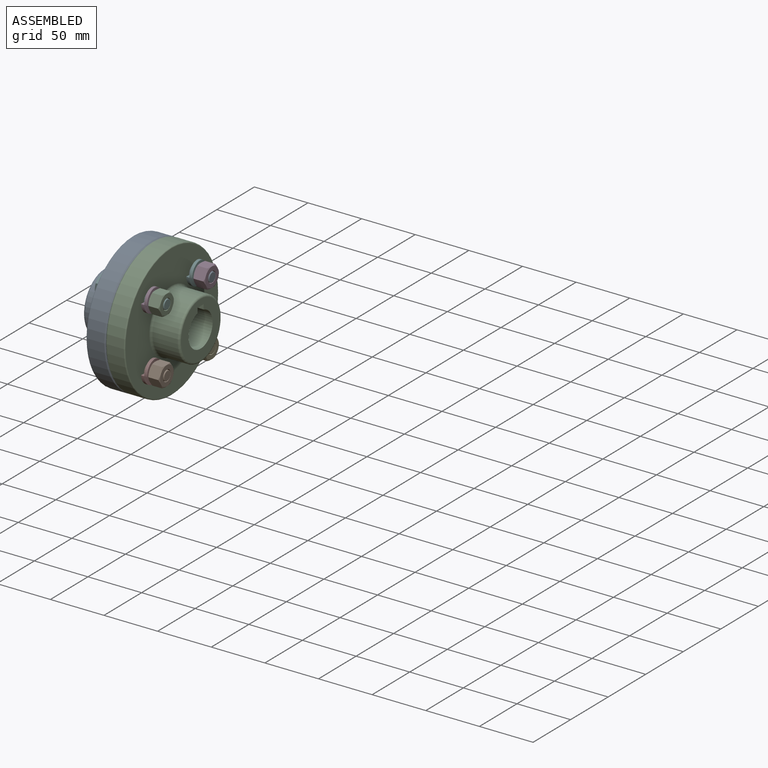
[diagram: assembled view]
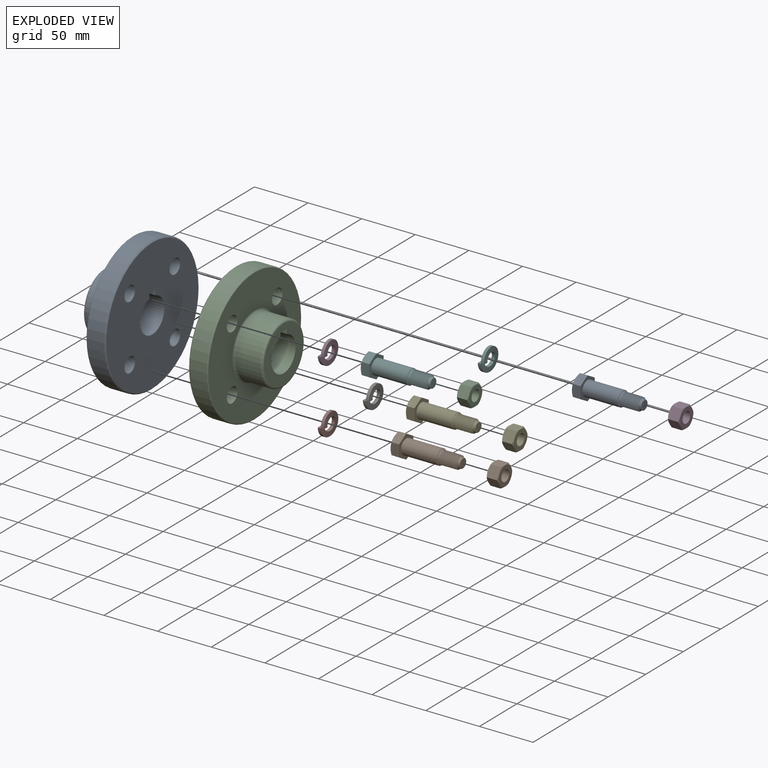
[diagram: exploded view]
GUIDED TOUR — MATED ASSEMBLY (Onshape document cb337943b501ef2673ab2de8, AutoMate assembly cb337943b501ef2673ab2de8_8743c53026f113860fbafb0b_4ac1e7995c9031f9525d6a02_default)

This assembly has 14 components, labeled P0..P13 below (a component is one placed occurrence of a part; the same part can appear more than once), held together by 13 mates. A mate is a constraint between two components; its type names the relative motion it leaves free:
  CYLINDRICAL — leaves both rotation about and translation along the listed axis free,
  FASTENED — locks the two components together rigidly (no relative motion).
Axis/direction vectors are unit vectors and 'through' points are millimeter coordinates, both in the assembly's world frame.

MATES
  1. FASTENED "Fastened 4": P9 <-> P8, direction (1.000, 0.000, 0.000) through (-18.00, -30.05, -30.05) mm
  2. FASTENED "Fastened 3": P13 <-> P8, direction (1.000, 0.000, 0.000) through (-18.00, -30.05, 30.05) mm
  3. FASTENED "Fastened 9": P6 <-> P10, direction (-1.000, 0.000, 0.000) through (18.00, 30.05, -29.99) mm
  4. FASTENED "Fastened 7": P5 <-> P10, direction (-1.000, 0.000, 0.000) through (18.00, 30.05, 30.11) mm
  5. CYLINDRICAL "Cylindrical 2": P2 <-> P3, axis (-1.000, 0.000, 0.000) through (23.76, -30.05, 30.11) mm
  6. FASTENED "Fastened 5": P12 <-> P8, direction (1.000, 0.000, 0.000) through (-18.00, 30.05, -30.05) mm
  7. CYLINDRICAL "Cylindrical 1": P11 <-> P5, axis (-1.000, 0.000, 0.000) through (23.76, 30.05, 30.11) mm
  8. CYLINDRICAL "Cylindrical 3": P1 <-> P7, axis (-1.000, 0.000, 0.000) through (23.76, -30.05, -29.99) mm
  9. CYLINDRICAL "Cylindrical 4": P4 <-> P6, axis (-1.000, 0.000, 0.000) through (23.76, 30.05, -29.99) mm
  10. FASTENED "Fastened 6": P3 <-> P10, direction (-1.000, 0.000, 0.000) through (18.00, -30.05, 30.11) mm
  11. FASTENED "Fastened 8": P7 <-> P10, direction (-1.000, 0.000, 0.000) through (18.00, -30.05, -29.99) mm
  12. FASTENED "Fastened 1": P10 <-> P8, direction (-1.000, 0.000, 0.000) through (0.00, 0.00, 0.00) mm
  13. FASTENED "Fastened 2": P0 <-> P8, direction (1.000, 0.000, 0.000) through (-18.00, 30.05, 30.05) mm

ASSEMBLY ORDER
  1. P8 — the base component [order heuristic]
  2. P0 [order heuristic]
  3. P9 [order heuristic]
  4. P10 [order heuristic]
  5. P12 [order heuristic]
  6. P13 [order heuristic]
  7. P3 [order heuristic]
  8. P5 [order heuristic]
  9. P6 [order heuristic]
  10. P7 [order heuristic]
  11. P1 [order heuristic]
  12. P2 [order heuristic]
  13. P4 [order heuristic]
  14. P11 [order heuristic]
Order-tag legend:
  [order heuristic] — this assembly is geometrically interlocked (no collision-free removal order exists), so components are listed in mate-graph order; insertion feasibility is not verified.

Of the 14 components, 2 carry the full construction recipe — the FeatureScript program that regenerates the part's solid from scratch; the rest are supplied as boundary geometry only.
Because this assembly has more than 12 components, the tour below covers the 12 most significant ones individually (every recipe-attached component first, then the largest by part volume), in assembly order; the remaining 2 are summarized together in a grouped section at the end.
Each toured component is shown spotlighted twice — in the assembled view, then in the exploded view, where a leader line traces a displaced component back to its assembled socket (saturated green if recipe-attached, orange if geometry-only; every other component desaturated gray) — followed by its recipe or geometry summary and the mates that hold it.
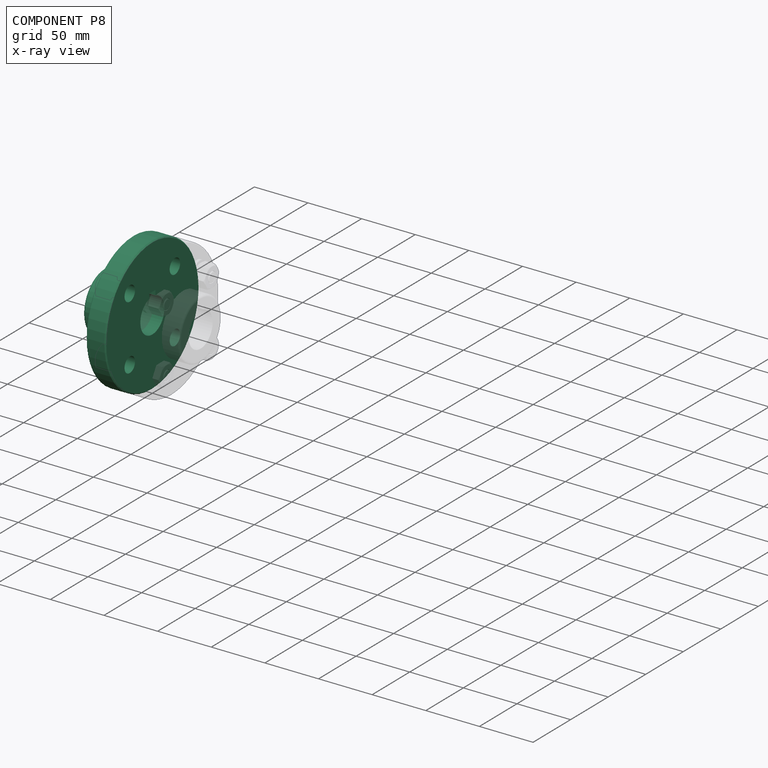
[diagram: component P8 — x-ray view]
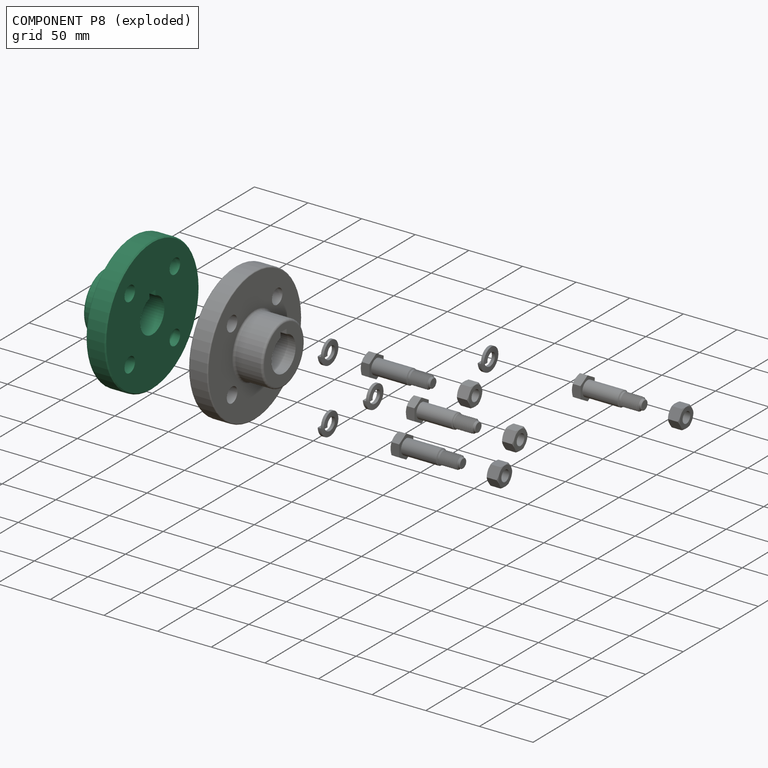
[diagram: component P8 — exploded]
COMPONENT P8 — recipe-attached (CADFS 00271778, mesh-verified: the recipe's output STEP matches this component's geometry to below the mesh-comparison resolution (tessellation chordal tolerance ~0.274 mm)).
Held by: FASTENED mate "Fastened 4" to P9; FASTENED mate "Fastened 3" to P13; FASTENED mate "Fastened 5" to P12; FASTENED mate "Fastened 1" to P10; FASTENED mate "Fastened 2" to P0.
Construction recipe (FeatureScript — the CAD program that rebuilds this solid; sketch coordinates are in the units given by the * unit suffixes, e.g. mm):

FeatureScript 1511;
import(path : "onshape/std/geometry.fs", version : "1511.0");
import(path : "onshape/std/common.fs", version : "1511.0");
const mm = millimeter;
const VERTEX = EntityType.VERTEX;
const EDGE = EntityType.EDGE;
const FACE = EntityType.FACE;
const BODY = EntityType.BODY;
function v(x, y){return vector(x, y);}
function OD(order){return orderDisambiguation(order);}
function OSD(set){return originalSetDisambiguation(set);}
function TD(topology){return topologyDisambiguation(topology);}
function TDD(query){return trueDependencyDisambiguation(query);}
function sQuery(a, b, c) {return sketchEntityQuery(a, b, c);}

annotation { "Feature Type Name" : "Feature", "Feature Type Description" : "" }
export const myFeature = defineFeature(function(context is Context, id is Id, definition is map)
    precondition{}
    {
        {
            var Q0;
            Q0=qCreatedBy(makeId("Front.planeOp"),FACE);
            var sketch = newSketch(context, id + "F0", { "sketchPlane" : qUnion([Q0])});
            skLineSegment(sketch, "E0", {"start": v(0, 16) * mm, "end": v(0, 62.5) * mm});
            skLineSegment(sketch, "E1", {"start": v(0, 62.5) * mm, "end": v(-18, 62.5) * mm});
            skLineSegment(sketch, "E2", {"start": v(-18, 62.5) * mm, "end": v(-18, 28) * mm});
            skLineSegment(sketch, "E3", {"start": v(-18, 28) * mm, "end": v(-45, 28) * mm});
            skLineSegment(sketch, "E4", {"start": v(-45, 28) * mm, "end": v(-45, 16) * mm});
            skLineSegment(sketch, "E5", {"start": v(-61.5, 0) * mm, "end": v(24.65, 0) * mm, "construction": true});
            skLineSegment(sketch, "E6", {"start": v(-45, 16) * mm, "end": v(0, 16) * mm});
            skSolve(sketch);
        }
        {
            var Q0;
            Q0=makeQuery(id+"F0.imprint","IMPRINT",FACE,{"disambiguationData":[TD([[makeQuery(id+"F0.imprint","IMPRINT",EDGE,{"derivedFrom":sQuery(id+"F0.wireOp",EDGE,"E0")}),1.0]])]});
            var Q1;
            Q1=sQuery(id+"F0.wireOp",EDGE,"E5");
            revolve(context, id + "F1", {"entities" : qUnion([Q0]), "axis" : qUnion([Q1]), "revolveType" : RevolveType.FULL});
        }
        {
            var Q0;
            Q0=makeQuery(id+"F1.opRevolve","SWEPT_FACE",FACE,{"disambiguationData":[OSD([sQuery(id+"F0.wireOp",EDGE,"E4")])]});
            var sketch = newSketch(context, id + "F2", { "sketchPlane" : qUnion([Q0])});
            skLineSegment(sketch, "E7.bottom", {"start": v(-4, 20) * mm, "end": v(4, 20) * mm});
            skLineSegment(sketch, "E7.top", {"start": v(-4, 12) * mm, "end": v(4, 12) * mm});
            skLineSegment(sketch, "E7.left", {"start": v(-4, 20) * mm, "end": v(-4, 12) * mm});
            skLineSegment(sketch, "E7.right", {"start": v(4, 20) * mm, "end": v(4, 12) * mm});
            skSolve(sketch);
        }
        {
            var Q0;
            Q0 = qSketchRegion(id + "F2", true);
            extrude(context, id + "F3", {"entities" : qUnion([Q0]), "operationType" : NewBodyOperationType.REMOVE, "endBound" : BoundingType.THROUGH_ALL, "oppositeDirection" : true, "depth" : 25 * mm});
        }
        {
            var Q0;
            Q0=makeQuery(id+"F1.opRevolve","SWEPT_FACE",FACE,{"disambiguationData":[OSD([sQuery(id+"F0.wireOp",EDGE,"E2")])]});
            var sketch = newSketch(context, id + "F4", { "sketchPlane" : qUnion([Q0])});
            skLineSegment(sketch, "E8", {"start": v(0, 0) * mm, "end": v(-30.05, 30.05) * mm, "construction": true});
            skLineSegment(sketch, "E9.MirrorCS", {"start": v(0, 0) * mm, "end": v(30.05, 30.05) * mm, "construction": true});
            skLineSegment(sketch, "E10.MirrorCS", {"start": v(0, 0) * mm, "end": v(30.05, -30.05) * mm, "construction": true});
            skLineSegment(sketch, "E11.MirrorCS", {"start": v(0, 0) * mm, "end": v(-30.05, -30.05) * mm, "construction": true});
            skSolve(sketch);
        }
        {
            var Q0;
            Q0=sQuery(id+"F4.wireOp",VERTEX,"E8.end");
            var Q1;
            Q1=sQuery(id+"F4.wireOp",VERTEX,"E11.MirrorCS.end");
            var Q2;
            Q2=sQuery(id+"F4.wireOp",VERTEX,"E10.MirrorCS.end");
            var Q3;
            Q3=sQuery(id+"F4.wireOp",VERTEX,"E9.MirrorCS.end");
            var Q4;
            Q4=makeQuery(id+"F1.opRevolve","SWEPT_BODY",BODY,{"disambiguationData":[OSD([sQuery(id+"F0.wireOp",EDGE,"E0"),sQuery(id+"F0.wireOp",EDGE,"E1"),sQuery(id+"F0.wireOp",EDGE,"E2"),sQuery(id+"F0.wireOp",EDGE,"E3"),sQuery(id+"F0.wireOp",EDGE,"E4"),sQuery(id+"F0.wireOp",EDGE,"E6")])]});
            hole(context, id + "F5", {"style" : HoleStyle.SIMPLE, "endStyle" : HoleEndStyle.THROUGH, "holeDiameter" : 14 * mm, "tappedDepth" : 12 * mm, "tapClearance" : 3, "locations" : qUnion([Q0, Q1, Q2, Q3]), "scope" : qUnion([Q4])});
        }
        {
            var Q0;
            Q0=makeQuery(id+"F1.opRevolve","SWEPT_EDGE",EDGE,{"disambiguationData":[OSD([sQuery(id+"F0.wireOp",EDGE,"E3"),sQuery(id+"F0.wireOp",EDGE,"E4")])]});
            var Q1;
            Q1=makeQuery(id+"F1.opRevolve","SWEPT_EDGE",EDGE,{"disambiguationData":[OSD([sQuery(id+"F0.wireOp",EDGE,"E2"),sQuery(id+"F0.wireOp",EDGE,"E3")])]});
            fillet(context, id + "F6", {"entities" : qUnion([Q0, Q1]), "radius" : 2 * mm, "tangentPropagation" : true, "allowEdgeOverflow" : false});
        }
        {
            var Q0;
            Q0=makeQuery(id+"F1.opRevolve","SWEPT_EDGE",EDGE,{"disambiguationData":[OSD([sQuery(id+"F0.wireOp",EDGE,"E1"),sQuery(id+"F0.wireOp",EDGE,"E2")])]});
            fillet(context, id + "F7", {"entities" : qUnion([Q0]), "radius" : 1 * mm, "tangentPropagation" : true, "allowEdgeOverflow" : false});
        }
        {
            var Q0;
            Q0=makeQuery(id+"F1.opRevolve","SWEPT_EDGE",EDGE,{"disambiguationData":[OSD([sQuery(id+"F0.wireOp",EDGE,"E0"),sQuery(id+"F0.wireOp",EDGE,"E1")])]});
            chamfer(context, id + "F8", {"entities" : qUnion([Q0]), "width" : 1 * mm, "tangentPropagation" : true});
        }
    });
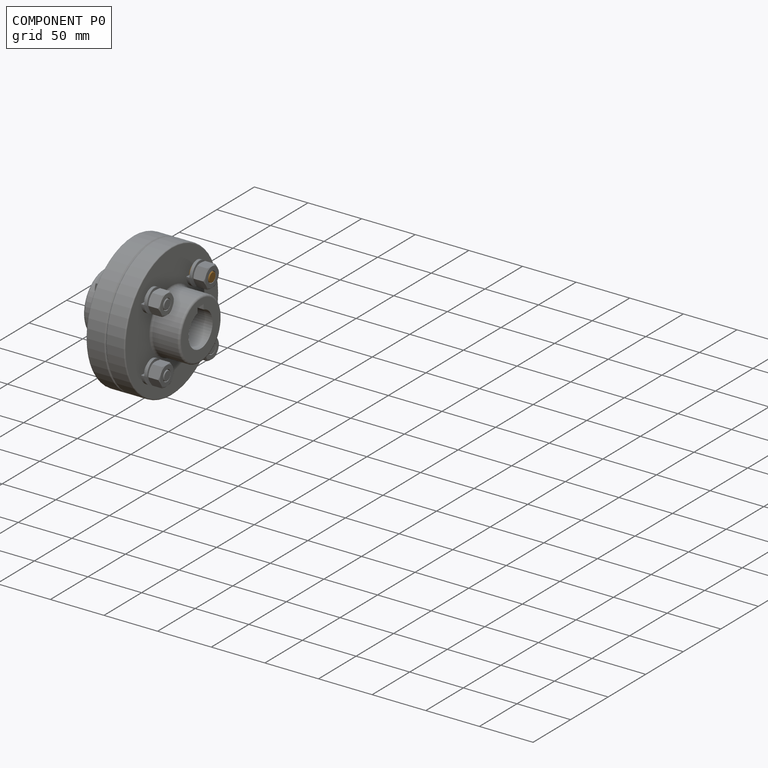
[diagram: component P0 — assembled]
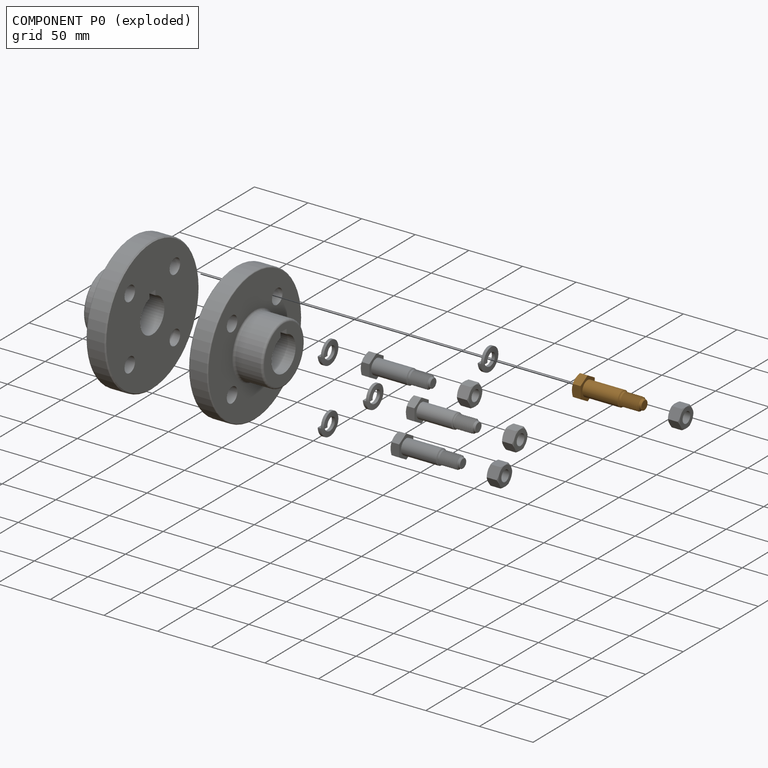
[diagram: component P0 — exploded]
COMPONENT P0 — geometry summary (no construction recipe available for this part):
  bounding box: 61.5 x 21.9 x 21.9 mm
  B-rep topology: 1 solid, 25 faces, 114 edges
  volume: 9304 mm^3 (31% of its bounding box)
Held by: FASTENED mate "Fastened 2" to P8.
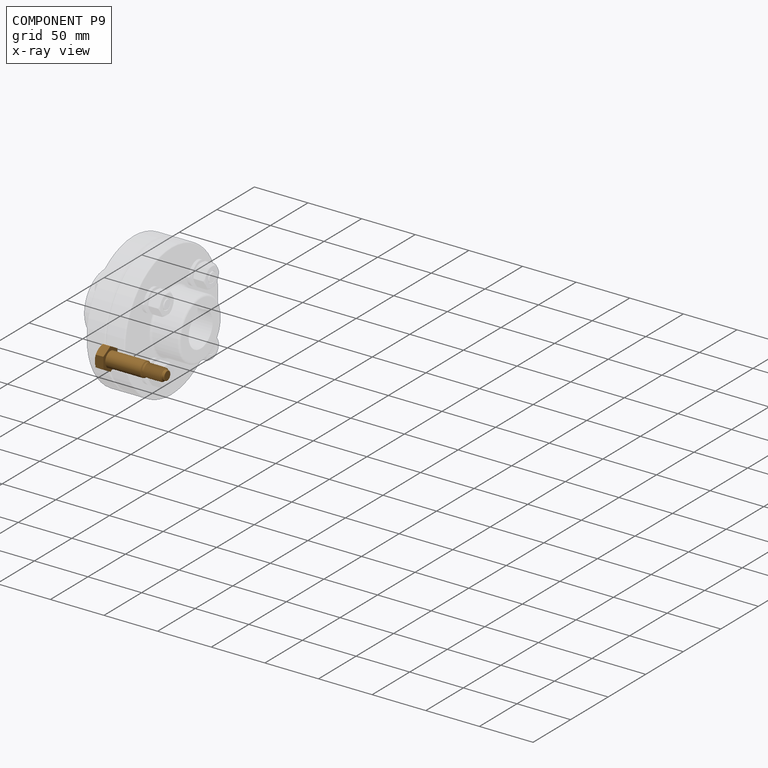
[diagram: component P9 — x-ray view]
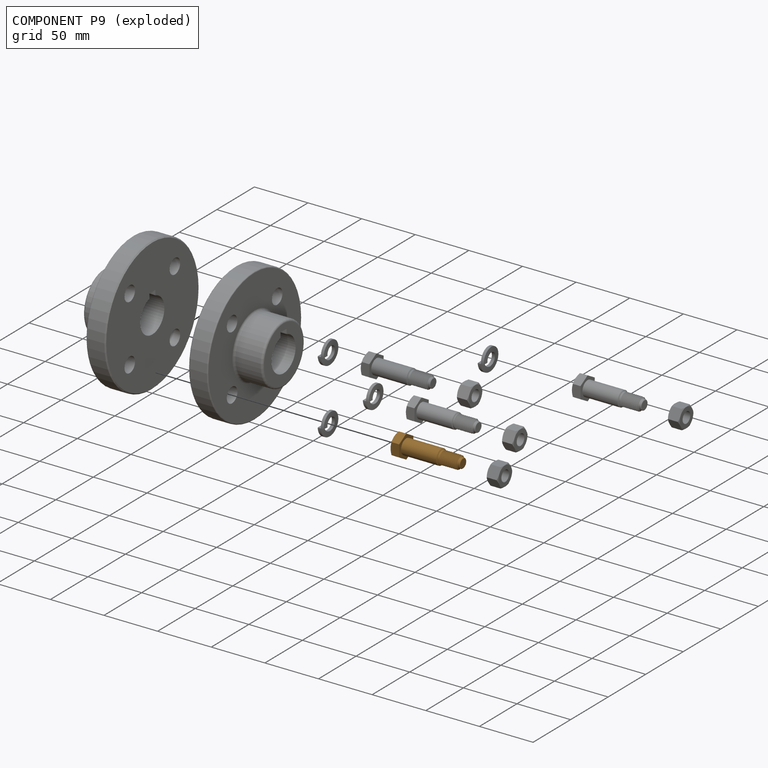
[diagram: component P9 — exploded]
COMPONENT P9 — geometry summary (no construction recipe available for this part):
  bounding box: 61.5 x 21.9 x 21.9 mm
  B-rep topology: 1 solid, 25 faces, 114 edges
  volume: 9304 mm^3 (31% of its bounding box)
Held by: FASTENED mate "Fastened 4" to P8.
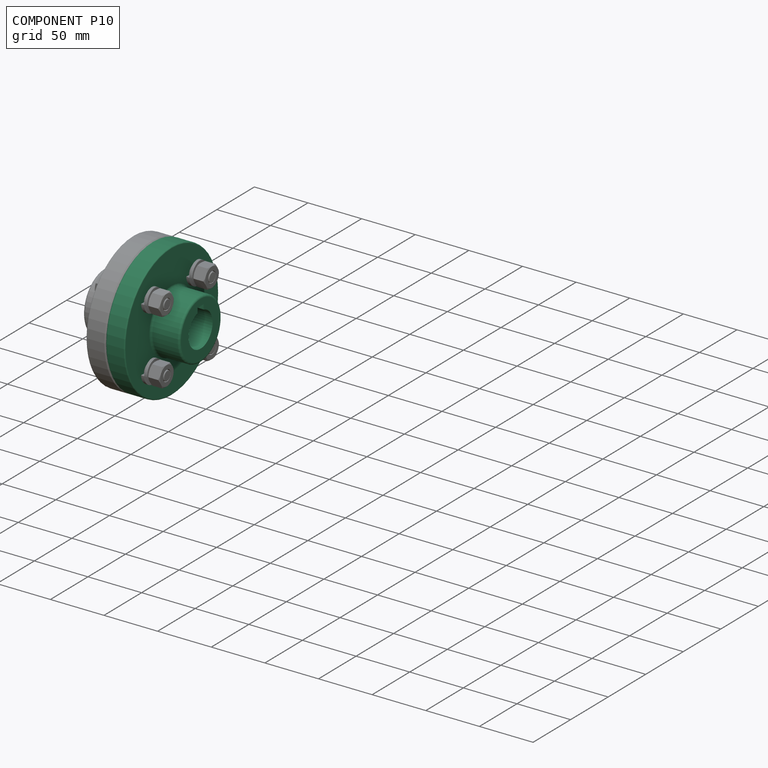
[diagram: component P10 — assembled]
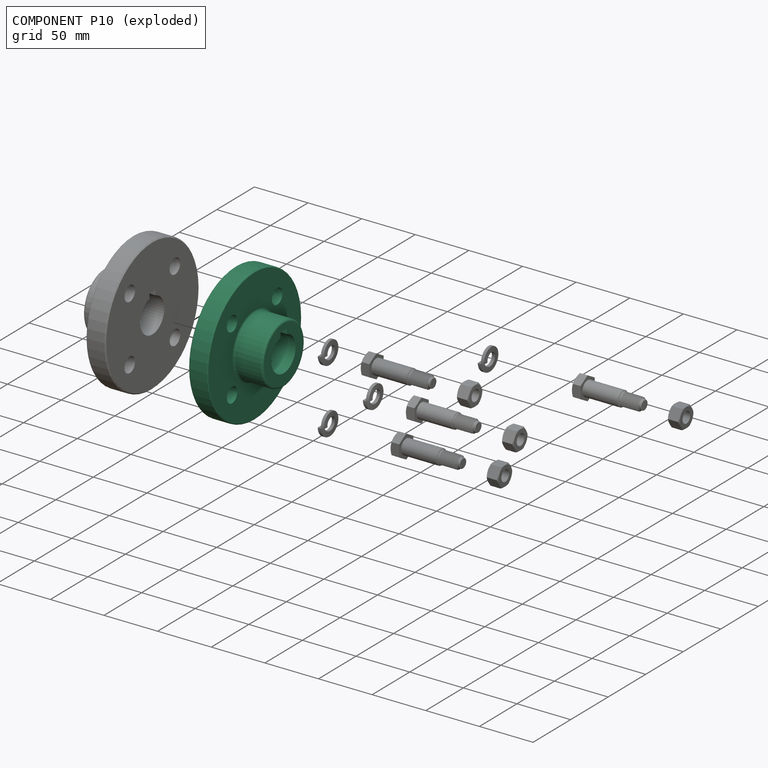
[diagram: component P10 — exploded]
COMPONENT P10 — same part as P8 (CADFS 00271778); its construction recipe is shown at P8.
Held by: FASTENED mate "Fastened 9" to P6; FASTENED mate "Fastened 7" to P5; FASTENED mate "Fastened 6" to P3; FASTENED mate "Fastened 8" to P7; FASTENED mate "Fastened 1" to P8.
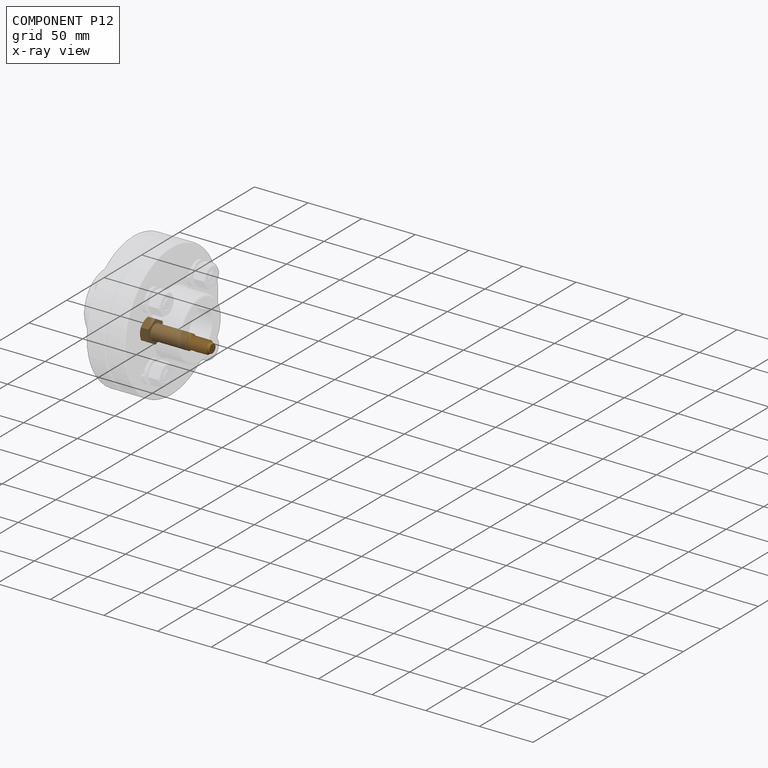
[diagram: component P12 — x-ray view]
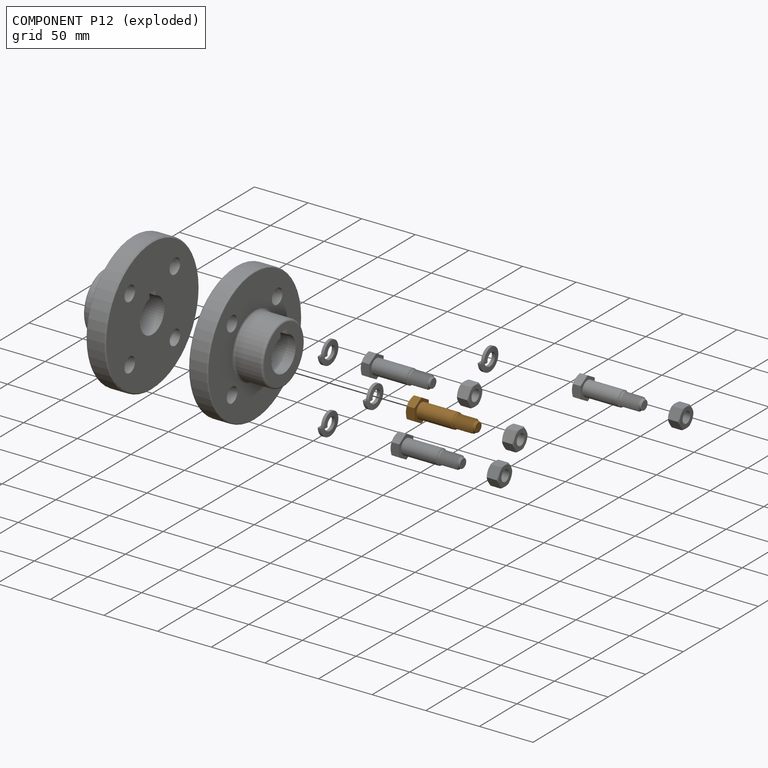
[diagram: component P12 — exploded]
COMPONENT P12 — geometry summary (no construction recipe available for this part):
  bounding box: 61.5 x 21.9 x 21.9 mm
  B-rep topology: 1 solid, 25 faces, 114 edges
  volume: 9304 mm^3 (31% of its bounding box)
Held by: FASTENED mate "Fastened 5" to P8.
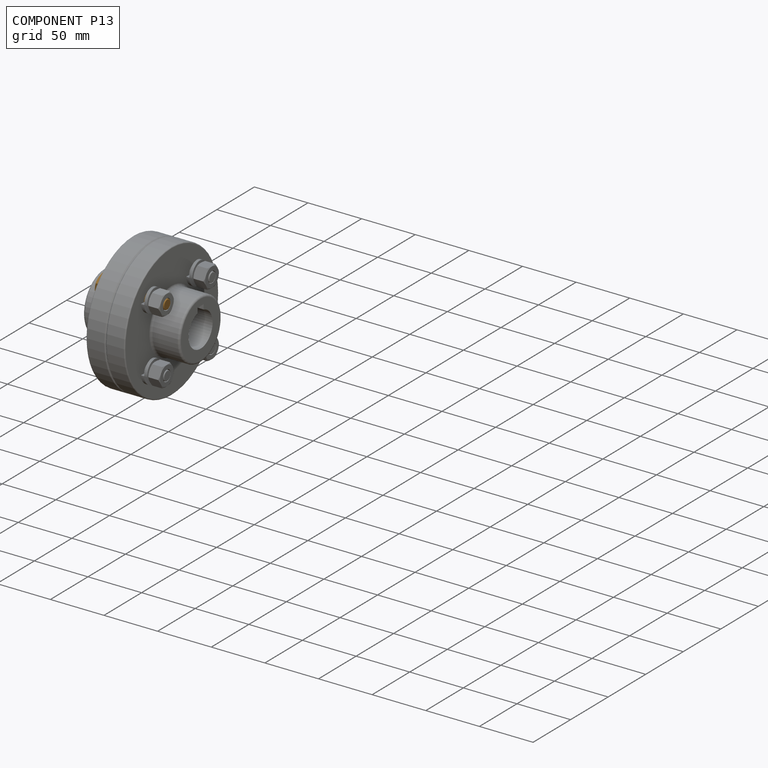
[diagram: component P13 — assembled]
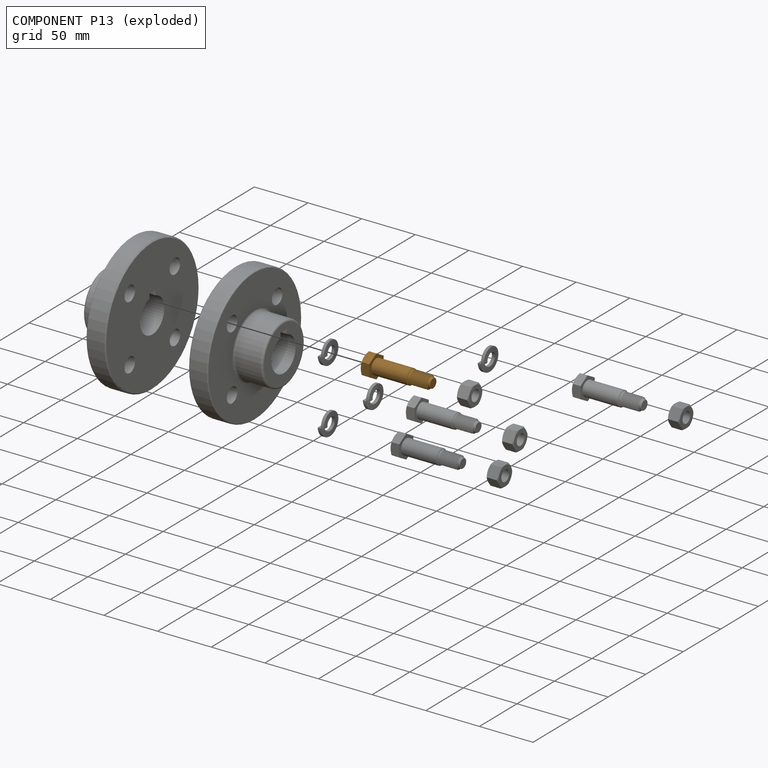
[diagram: component P13 — exploded]
COMPONENT P13 — geometry summary (no construction recipe available for this part):
  bounding box: 61.5 x 21.9 x 21.9 mm
  B-rep topology: 1 solid, 25 faces, 114 edges
  volume: 9304 mm^3 (31% of its bounding box)
Held by: FASTENED mate "Fastened 3" to P8.
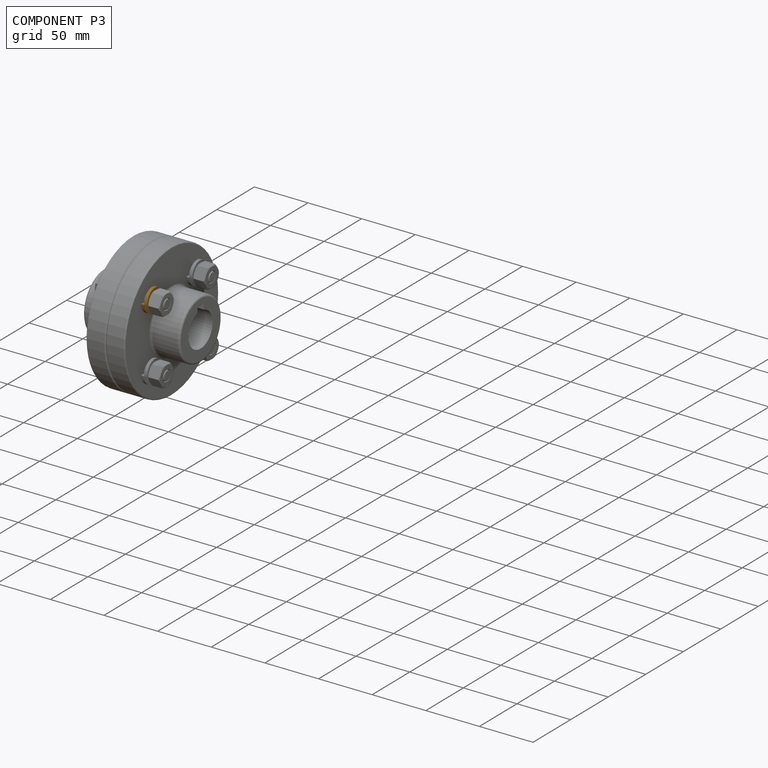
[diagram: component P3 — assembled]
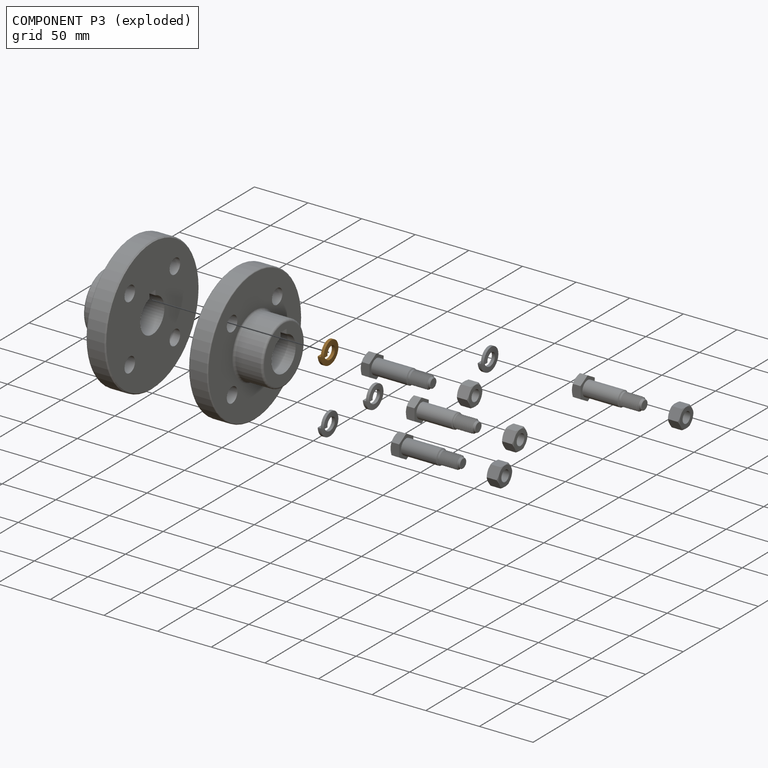
[diagram: component P3 — exploded]
COMPONENT P3 — geometry summary (no construction recipe available for this part):
  bounding box: 24.8 x 21.5 x 6.0 mm
  B-rep topology: 1 solid, 6 faces, 24 edges
  volume: 696 mm^3 (22% of its bounding box)
  symmetry: 2-fold rotationally symmetric about the x axis
Held by: CYLINDRICAL mate "Cylindrical 2" to P2; FASTENED mate "Fastened 6" to P10.
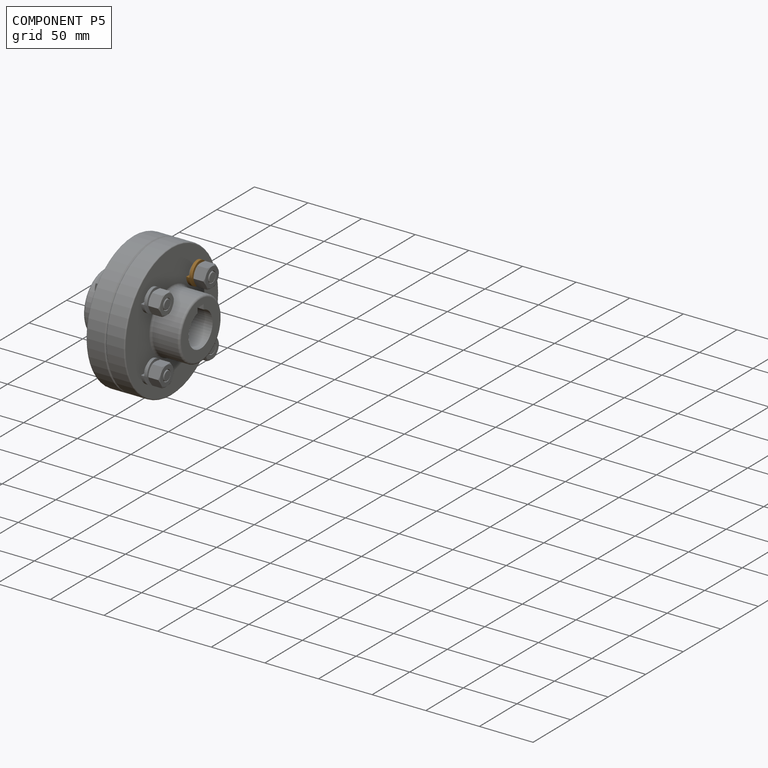
[diagram: component P5 — assembled]
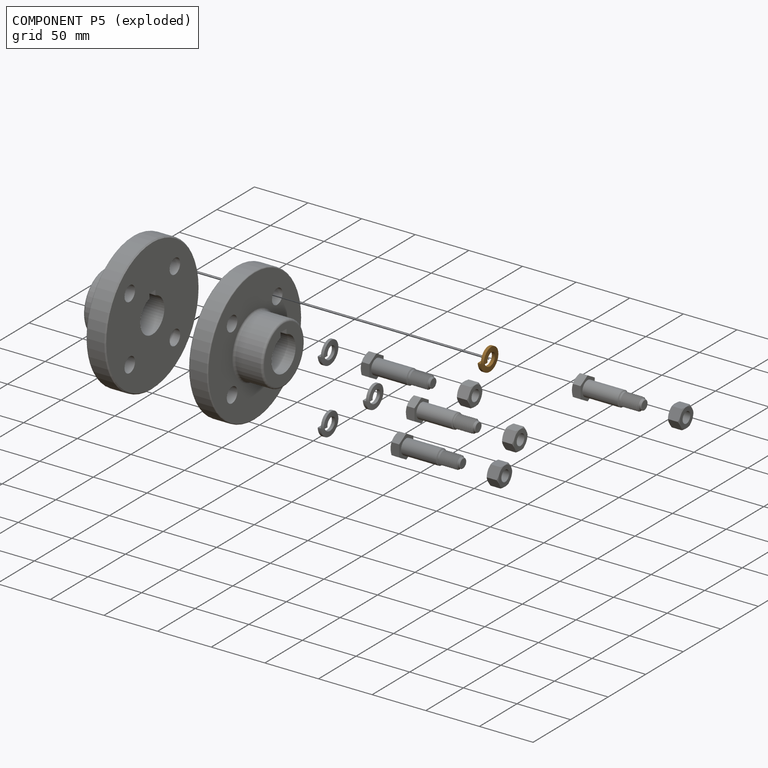
[diagram: component P5 — exploded]
COMPONENT P5 — geometry summary (no construction recipe available for this part):
  bounding box: 24.8 x 21.5 x 6.0 mm
  B-rep topology: 1 solid, 6 faces, 24 edges
  volume: 696 mm^3 (22% of its bounding box)
  symmetry: 2-fold rotationally symmetric about the x axis
Held by: FASTENED mate "Fastened 7" to P10; CYLINDRICAL mate "Cylindrical 1" to P11.
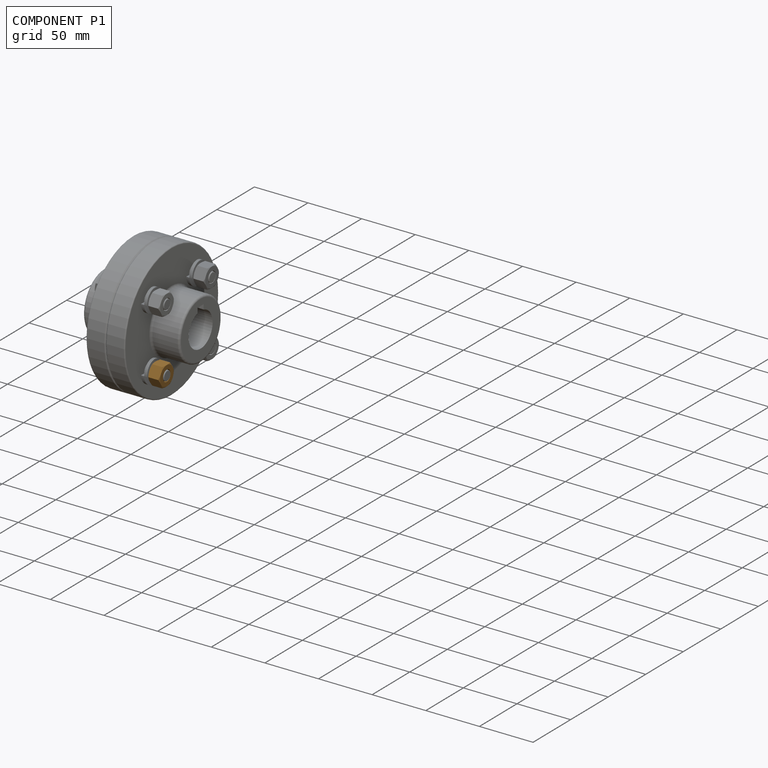
[diagram: component P1 — assembled]
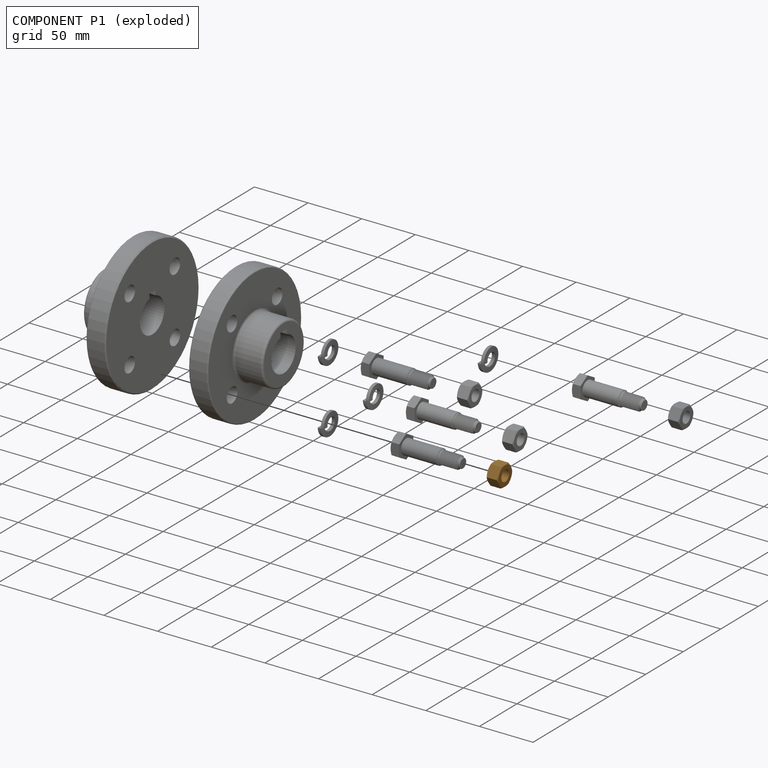
[diagram: component P1 — exploded]
COMPONENT P1 — geometry summary (no construction recipe available for this part):
  bounding box: 21.6 x 21.6 x 11.7 mm
  B-rep topology: 1 solid, 21 faces, 90 edges
  volume: 2226 mm^3 (41% of its bounding box)
  symmetry: 2-fold rotationally symmetric about the x axis; 6-fold rotationally symmetric about the y axis; 2-fold rotationally symmetric about the z axis; mirror-symmetric across its x mid-plane, y mid-plane, z mid-plane
Held by: CYLINDRICAL mate "Cylindrical 3" to P7.
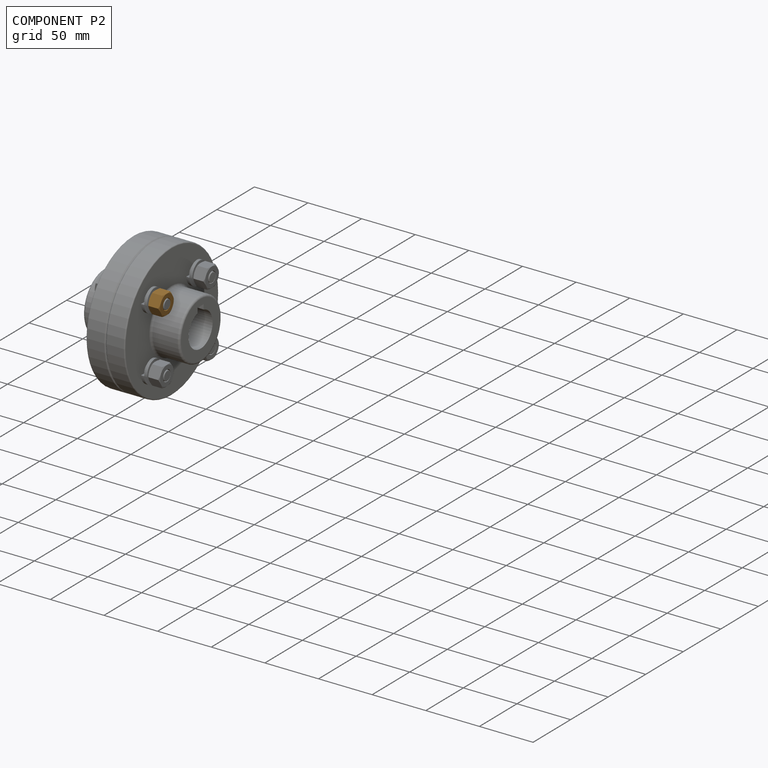
[diagram: component P2 — assembled]
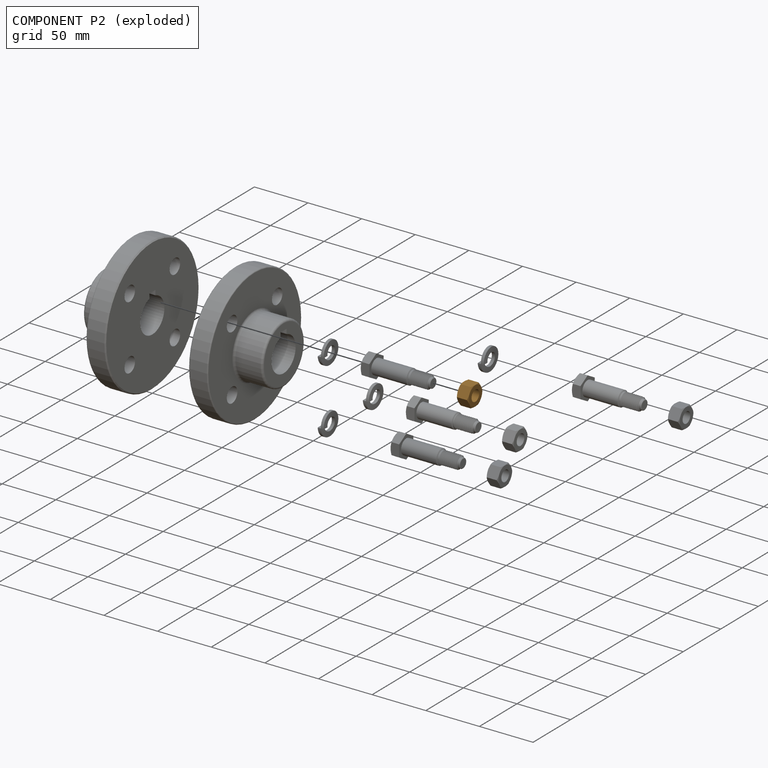
[diagram: component P2 — exploded]
COMPONENT P2 — geometry summary (no construction recipe available for this part):
  bounding box: 21.6 x 21.6 x 11.7 mm
  B-rep topology: 1 solid, 21 faces, 90 edges
  volume: 2226 mm^3 (41% of its bounding box)
  symmetry: 2-fold rotationally symmetric about the x axis; 6-fold rotationally symmetric about the y axis; 2-fold rotationally symmetric about the z axis; mirror-symmetric across its x mid-plane, y mid-plane, z mid-plane
Held by: CYLINDRICAL mate "Cylindrical 2" to P3.
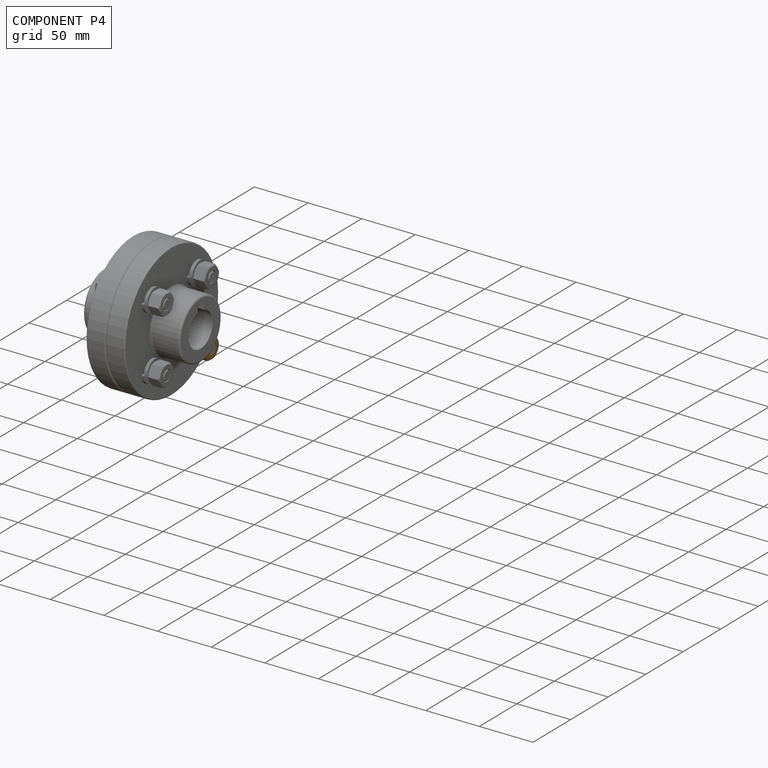
[diagram: component P4 — assembled]
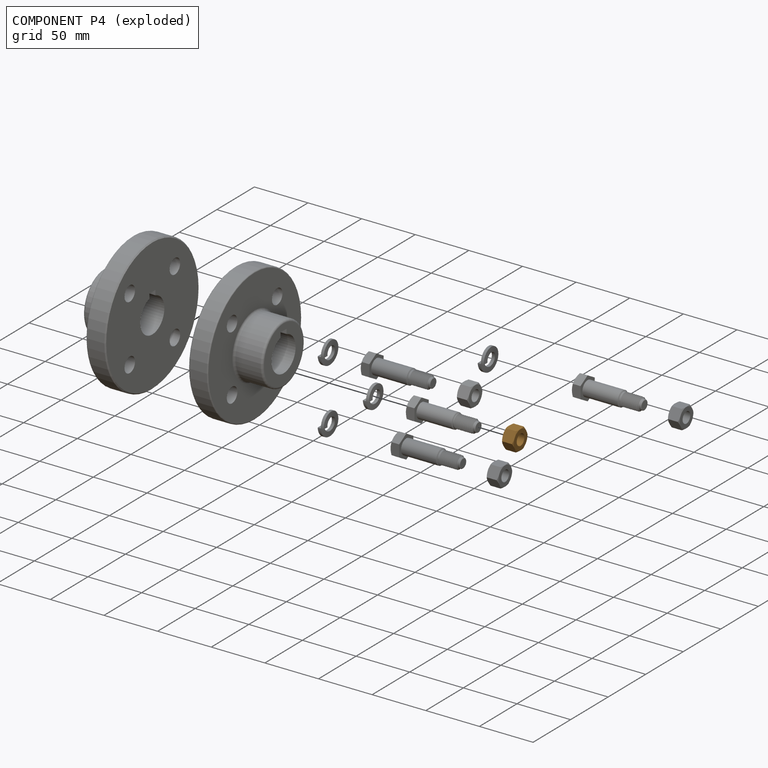
[diagram: component P4 — exploded]
COMPONENT P4 — geometry summary (no construction recipe available for this part):
  bounding box: 21.6 x 21.6 x 11.7 mm
  B-rep topology: 1 solid, 21 faces, 90 edges
  volume: 2226 mm^3 (41% of its bounding box)
  symmetry: 2-fold rotationally symmetric about the x axis; 6-fold rotationally symmetric about the y axis; 2-fold rotationally symmetric about the z axis; mirror-symmetric across its x mid-plane, y mid-plane, z mid-plane
Held by: CYLINDRICAL mate "Cylindrical 4" to P6.
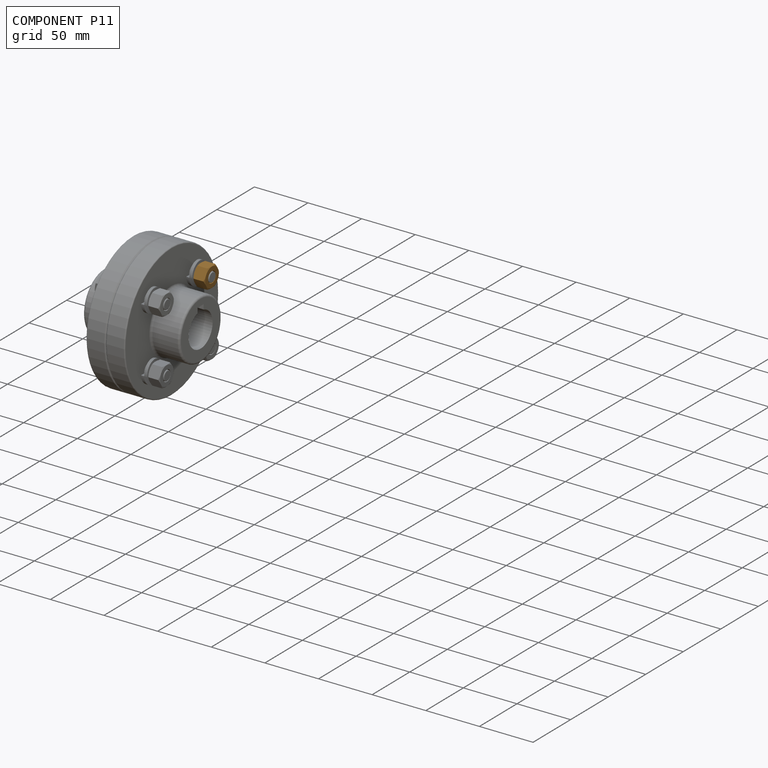
[diagram: component P11 — assembled]
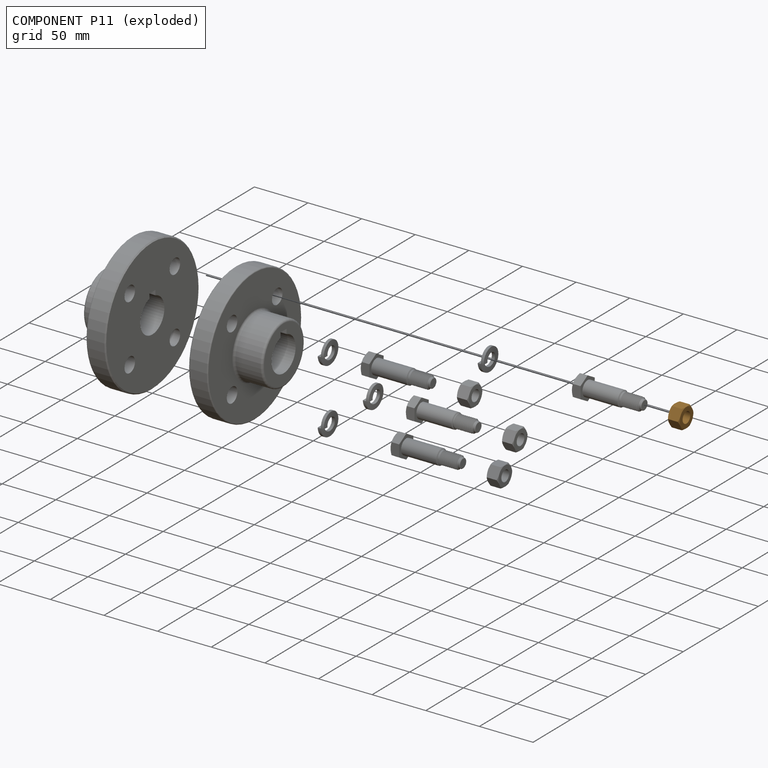
[diagram: component P11 — exploded]
COMPONENT P11 — geometry summary (no construction recipe available for this part):
  bounding box: 21.6 x 21.6 x 11.7 mm
  B-rep topology: 1 solid, 21 faces, 90 edges
  volume: 2226 mm^3 (41% of its bounding box)
  symmetry: 2-fold rotationally symmetric about the x axis; 6-fold rotationally symmetric about the y axis; 2-fold rotationally symmetric about the z axis; mirror-symmetric across its x mid-plane, y mid-plane, z mid-plane
Held by: CYLINDRICAL mate "Cylindrical 1" to P5.
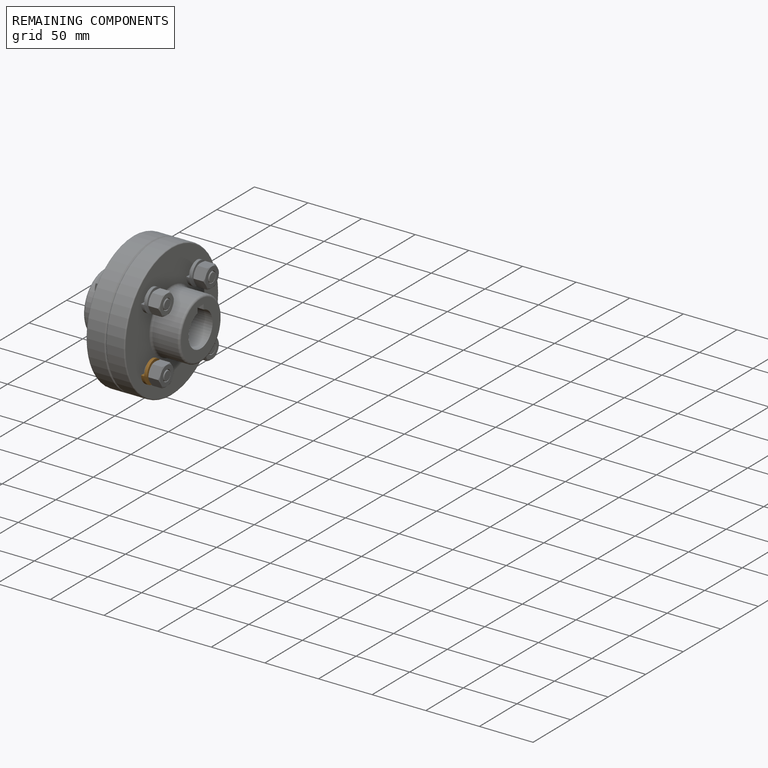
[diagram: remaining components — assembled]
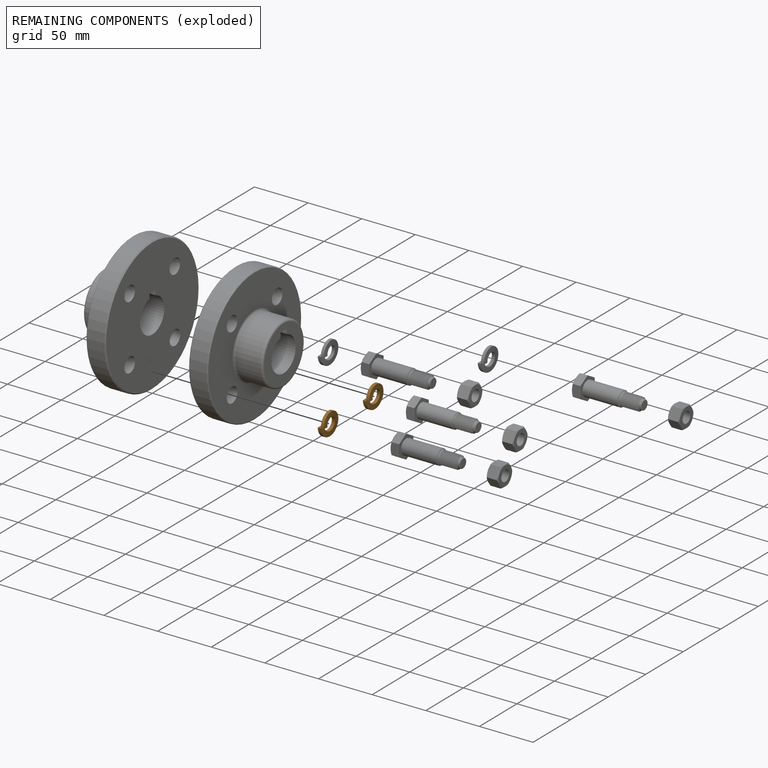
[diagram: remaining components — exploded]
REMAINING COMPONENTS (grouped) — the 2 components below fall outside the per-component tour by the significance rule stated above; both spotlight views highlight the whole group.
  P6: bounding box 24.8 x 21.5 x 6.0 mm, volume 696 mm^3. Held by: FASTENED mate "Fastened 9" to P10; CYLINDRICAL mate "Cylindrical 4" to P4.
  P7: bounding box 24.8 x 21.5 x 6.0 mm, volume 696 mm^3. Held by: CYLINDRICAL mate "Cylindrical 3" to P1; FASTENED mate "Fastened 8" to P10.
PROVENANCE & LICENSES
Assembly (occurrences, transforms, mates, per-part STEP geometry): AutoMate dataset, Zenodo record 7776208, CC0.
Construction recipes: CADFS (HuggingFace VladPyatov/CADFS, CC-BY-4.0, layered over the ABC dataset), FeatureScript reconstruction programs keyed by ABC model id.
Join: ABC meta listings map ABC model id -> Onshape documentId; within a shared document, parts are matched by geometric signature (bounding-box dims + volume at 0.1% relative tolerance, exact B-rep face/solid counts).
Verification: 2 of this assembly's 14 components carry a recipe attachment, and every attachment is mesh-verified: the CADFS STEP and the AutoMate member STEP were compared as meshes in their shared local frame (symmetric sampled-point-to-mesh distance); worst across the 2 attachments: below the mesh-comparison resolution (tessellation chordal tolerance ~0.274 mm) on a 182 mm part.
Renders: orthographic iso camera (az 35 / el 25); the floor grid conveys scale (grid pitch printed in each image; no ruler). In the exploded view each component is displaced by its stored offset vector: the offsets alone carry the explosion direction (mate normal/axis signs are not orientation cues and do not encode it), and separation distances are assigned per mate-chain, not proportionally to assembly-order depth.
